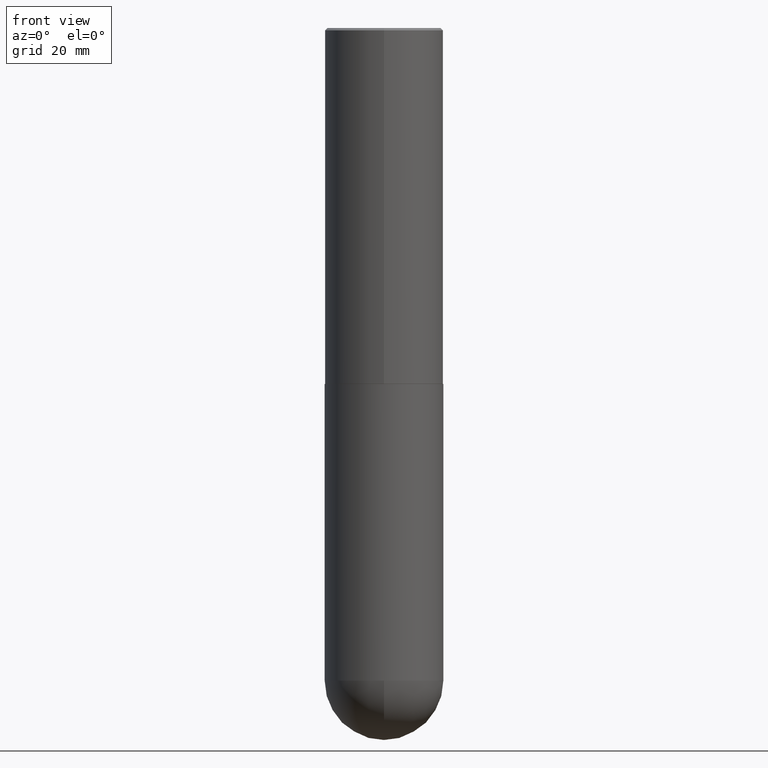
[diagram: clean part render]
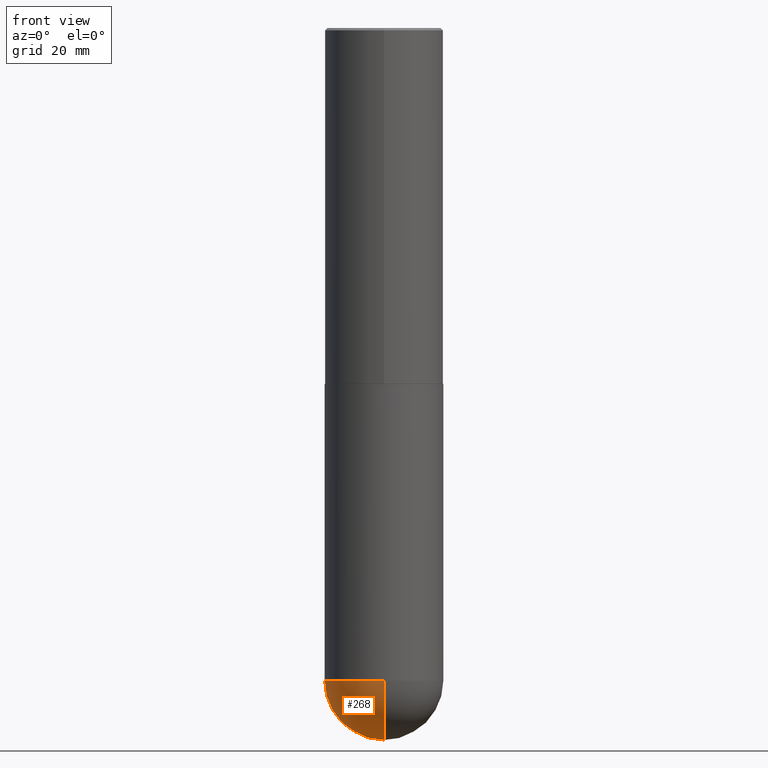
[diagram: same view with one face highlighted and labeled with its STEP entity id]
A machine part, front view. The second image highlights one B-rep face of the part: STEP entity #268.
In plain terms, the highlighted spherical surface has radius 12.7 mm.
Its self-contained STEP definition (entity closure, byte-faithful):
#1 = AXIS2_PLACEMENT_3D ( 'NONE', #324, #161, #390 ) ;
#29 = EDGE_CURVE ( 'NONE', #395, #87, #396, .T. ) ;
#30 = DIRECTION ( 'NONE',  ( -2.445468806185136597E-29, 3.491481338843145583E-15, 1.000000000000000000 ) ) ;
#35 = DIRECTION ( 'NONE',  ( 1.000000000000000000, -6.982962677686265922E-15, 4.883557194083112340E-29 ) ) ;
#44 = EDGE_CURVE ( 'NONE', #223, #395, #284, .T. ) ;
#47 = AXIS2_PLACEMENT_3D ( 'NONE', #127, #30, #261 ) ;
#53 = DIRECTION ( 'NONE',  ( 6.982962677686265922E-15, 1.000000000000000000, -4.370956789862816416E-15 ) ) ;
#70 = ORIENTED_EDGE ( 'NONE', *, *, #382, .T. ) ;
#83 = CARTESIAN_POINT ( 'NONE',  ( -0.5000000000000000000, -1.128608201128287263E-14, -5.500000000000000888 ) ) ;
#87 = VERTEX_POINT ( 'NONE', #196 ) ;
#96 = ORIENTED_EDGE ( 'NONE', *, *, #29, .F. ) ;
#99 = DIRECTION ( 'NONE',  ( 6.982962677686265922E-15, 1.000000000000000000, 0.000000000000000000 ) ) ;
#117 = EDGE_CURVE ( 'NONE', #306, #223, #259, .T. ) ;
#124 = ORIENTED_EDGE ( 'NONE', *, *, #44, .F. ) ;
#127 = CARTESIAN_POINT ( 'NONE',  ( 1.345007843401825128E-28, -1.920314736363730603E-14, -5.500000000000000888 ) ) ;
#131 = CARTESIAN_POINT ( 'NONE',  ( 1.345007843401825128E-28, -1.920314736363730603E-14, -5.500000000000000888 ) ) ;
#144 = DIRECTION ( 'NONE',  ( -1.000000000000000000, 6.982962677686265922E-15, -4.883557194083112901E-29 ) ) ;
#159 = DIRECTION ( 'NONE',  ( -2.445468806185136597E-29, 3.491481338843145583E-15, 1.000000000000000000 ) ) ;
#161 = DIRECTION ( 'NONE',  ( -1.000000000000000000, 7.105427357601001070E-15, -4.926315508542082329E-29 ) ) ;
#169 = SPHERICAL_SURFACE ( 'NONE', #216, 0.5000000000000005551 ) ;
#179 = CARTESIAN_POINT ( 'NONE',  ( 1.436307221642642309E-28, -2.139245423122024710E-14, -6.000000000000001776 ) ) ;
#182 = CIRCLE ( 'NONE', #1, 0.5000000000000005551 ) ;
#195 = EDGE_LOOP ( 'NONE', ( #234, #70, #96, #124 ) ) ;
#196 = CARTESIAN_POINT ( 'NONE',  ( -3.552713678800369978E-15, -0.5000000000000196509, -5.499999999999999112 ) ) ;
#216 = AXIS2_PLACEMENT_3D ( 'NONE', #402, #144, #53 ) ;
#223 = VERTEX_POINT ( 'NONE', #251 ) ;
#234 = ORIENTED_EDGE ( 'NONE', *, *, #117, .F. ) ;
#250 = FACE_OUTER_BOUND ( 'NONE', #195, .T. ) ;
#251 = CARTESIAN_POINT ( 'NONE',  ( 3.491481338843267462E-15, 0.4999999999999808487, -5.500000000000002665 ) ) ;
#259 = CIRCLE ( 'NONE', #267, 0.5000000000000005551 ) ;
#261 = DIRECTION ( 'NONE',  ( 1.000000000000000000, -6.982962677686270655E-15, 0.000000000000000000 ) ) ;
#267 = AXIS2_PLACEMENT_3D ( 'NONE', #329, #35, #99 ) ;
#268 = ADVANCED_FACE ( 'NONE', ( #250 ), #169, .T. ) ;
#284 = CIRCLE ( 'NONE', #315, 0.5000000000000000000 ) ;
#306 = VERTEX_POINT ( 'NONE', #179 ) ;
#315 = AXIS2_PLACEMENT_3D ( 'NONE', #131, #159, #357 ) ;
#324 = CARTESIAN_POINT ( 'NONE',  ( 1.311895865610436840E-28, -1.967732973177735475E-14, -5.500000000000000888 ) ) ;
#329 = CARTESIAN_POINT ( 'NONE',  ( 1.311895865610436840E-28, -1.967732973177735475E-14, -5.500000000000000888 ) ) ;
#357 = DIRECTION ( 'NONE',  ( 1.000000000000000000, -6.982962677686270655E-15, 0.000000000000000000 ) ) ;
#382 = EDGE_CURVE ( 'NONE', #306, #87, #182, .T. ) ;
#390 = DIRECTION ( 'NONE',  ( -7.105427357601000281E-15, -1.000000000000000000, 0.000000000000000000 ) ) ;
#395 = VERTEX_POINT ( 'NONE', #83 ) ;
#396 = CIRCLE ( 'NONE', #47, 0.5000000000000000000 ) ;
#402 = CARTESIAN_POINT ( 'NONE',  ( 1.311895865610436840E-28, -1.967732973177735475E-14, -5.500000000000000888 ) ) ;